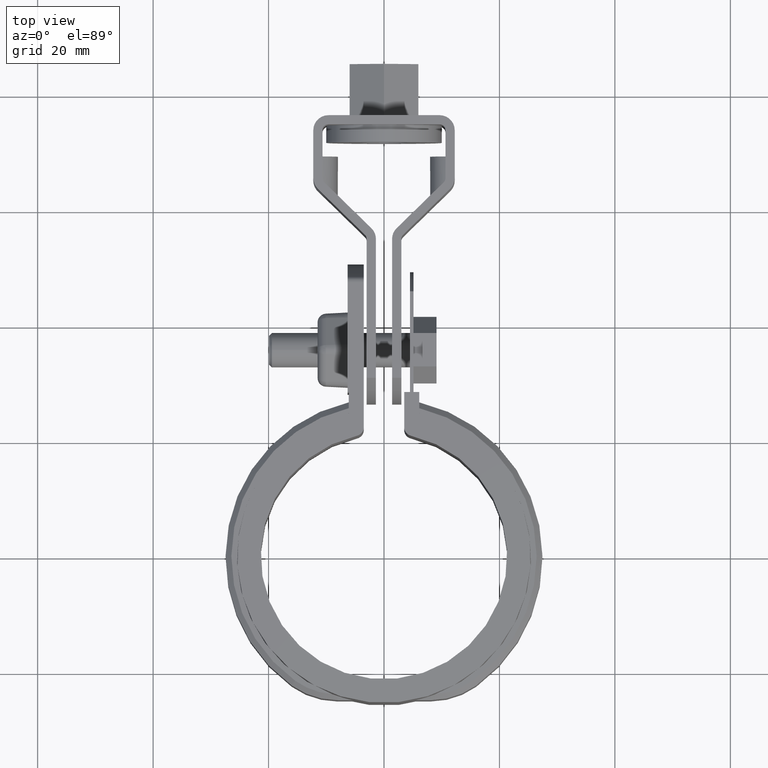
[diagram: clean part render]
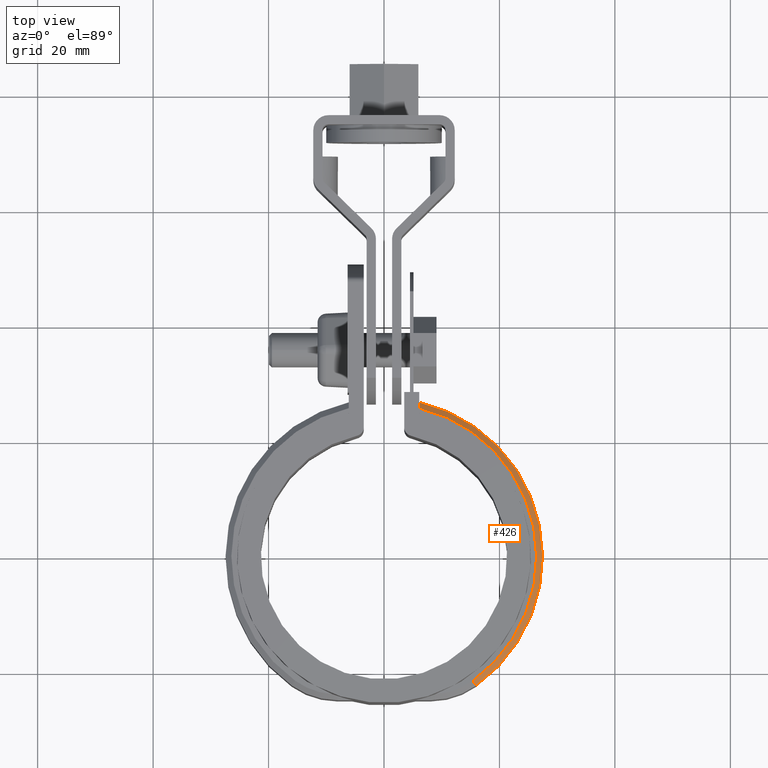
[diagram: same view with one face highlighted and labeled with its STEP entity id]
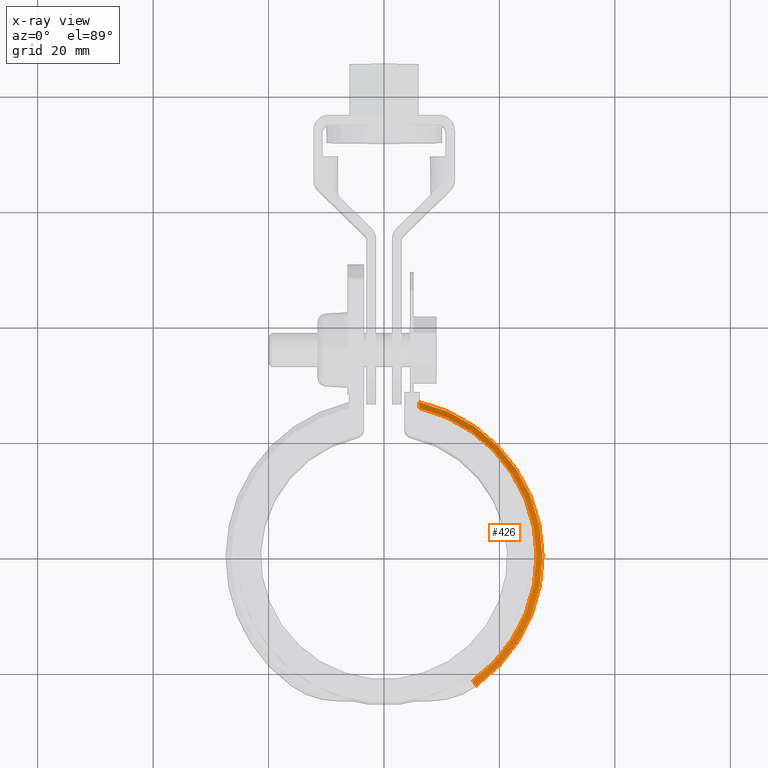
[diagram: x-ray of the same camera — body ghosted, the highlighted face saturated]
A machine part, top view. The second image highlights one B-rep face of the part: STEP entity #426.
The next image is the same camera in x-ray: the body ghosted, the highlighted face saturated — about 0% of this face is hidden behind the body in this view.
In plain terms, the highlighted conical surface has half-angle 45 deg.
Its self-contained STEP definition (entity closure, byte-faithful):
#426 = ADVANCED_FACE( '', ( #844 ), #845, .T. );
#844 = FACE_OUTER_BOUND( '', #1841, .T. );
#845 = CONICAL_SURFACE( '', #1842, 27.4450000000000, 0.785398163397448 );
#1841 = EDGE_LOOP( '', ( #4007, #4008, #4009, #4010 ) );
#1842 = AXIS2_PLACEMENT_3D( '', #4011, #4012, #4013 );
#4007 = ORIENTED_EDGE( '', *, *, #7564, .F. );
#4008 = ORIENTED_EDGE( '', *, *, #7565, .F. );
#4009 = ORIENTED_EDGE( '', *, *, #7566, .F. );
#4010 = ORIENTED_EDGE( '', *, *, #7567, .F. );
#4011 = CARTESIAN_POINT( '', ( -8.67361737988404E-016, -3.46944695195361E-015, -6.00000000000000 ) );
#4012 = DIRECTION( '', ( 0.000000000000000, 0.000000000000000, -1.00000000000000 ) );
#4013 = DIRECTION( '', ( -1.00000000000000, 0.000000000000000, 0.000000000000000 ) );
#7564 = EDGE_CURVE( '', #8714, #8715, #8716, .F. );
#7565 = EDGE_CURVE( '', #8717, #8714, #8718, .T. );
#7566 = EDGE_CURVE( '', #8719, #8717, #8720, .T. );
#7567 = EDGE_CURVE( '', #8715, #8719, #8721, .T. );
#8714 = VERTEX_POINT( '', #11630 );
#8715 = VERTEX_POINT( '', #11631 );
#8716 = B_SPLINE_CURVE_WITH_KNOTS( '', 3, ( #11632, #11633, #11634, #11635 ), .UNSPECIFIED., .F., .F., ( 4, 4 ), ( 707.068454588770, 707.069887791217 ), .UNSPECIFIED. );
#8717 = VERTEX_POINT( '', #11636 );
#8718 = CIRCLE( '', #11637, 26.4450000000000 );
#8719 = VERTEX_POINT( '', #11638 );
#8720 = LINE( '', #11639, #11640 );
#8721 = CIRCLE( '', #11641, 27.4450000000000 );
#11630 = CARTESIAN_POINT( '', ( 6.10000000000001, 25.7318484567277, -5.00000000000000 ) );
#11631 = CARTESIAN_POINT( '', ( 6.10000000000001, 26.7585131313382, -6.00000000000000 ) );
#11632 = CARTESIAN_POINT( '', ( 6.10000000000001, 26.7585131313125, -5.99999999997491 ) );
#11633 = CARTESIAN_POINT( '', ( 6.10000000000001, 26.4164552884550, -5.66649811330049 ) );
#11634 = CARTESIAN_POINT( '', ( 6.10000000000001, 26.0742400868314, -5.33315823553340 ) );
#11635 = CARTESIAN_POINT( '', ( 6.10000000000001, 25.7318484566882, -4.99999999996157 ) );
#11636 = CARTESIAN_POINT( '', ( 15.3872495721368, -21.5074539544962, -5.00000000000000 ) );
#11637 = AXIS2_PLACEMENT_3D( '', #14800, #14801, #14802 );
#11638 = CARTESIAN_POINT( '', ( 15.9691081303572, -22.3207439508848, -6.00000000000000 ) );
#11639 = CARTESIAN_POINT( '', ( 15.9691081303572, -22.3207439508848, -6.00000000000000 ) );
#11640 = VECTOR( '', #14803, 1000.00000000000 );
#11641 = AXIS2_PLACEMENT_3D( '', #14804, #14805, #14806 );
#14800 = CARTESIAN_POINT( '', ( -8.67361737988404E-016, -3.46944695195361E-015, -5.00000000000000 ) );
#14801 = DIRECTION( '', ( 0.000000000000000, 0.000000000000000, 1.00000000000000 ) );
#14802 = DIRECTION( '', ( 1.00000000000000, 0.000000000000000, 0.000000000000000 ) );
#14803 = DIRECTION( '', ( -0.411436132209030, 0.575082871517553, 0.707106781186547 ) );
#14804 = CARTESIAN_POINT( '', ( -8.67361737988404E-016, -3.46944695195361E-015, -6.00000000000000 ) );
#14805 = DIRECTION( '', ( 0.000000000000000, 0.000000000000000, -1.00000000000000 ) );
#14806 = DIRECTION( '', ( -1.00000000000000, 0.000000000000000, 0.000000000000000 ) );